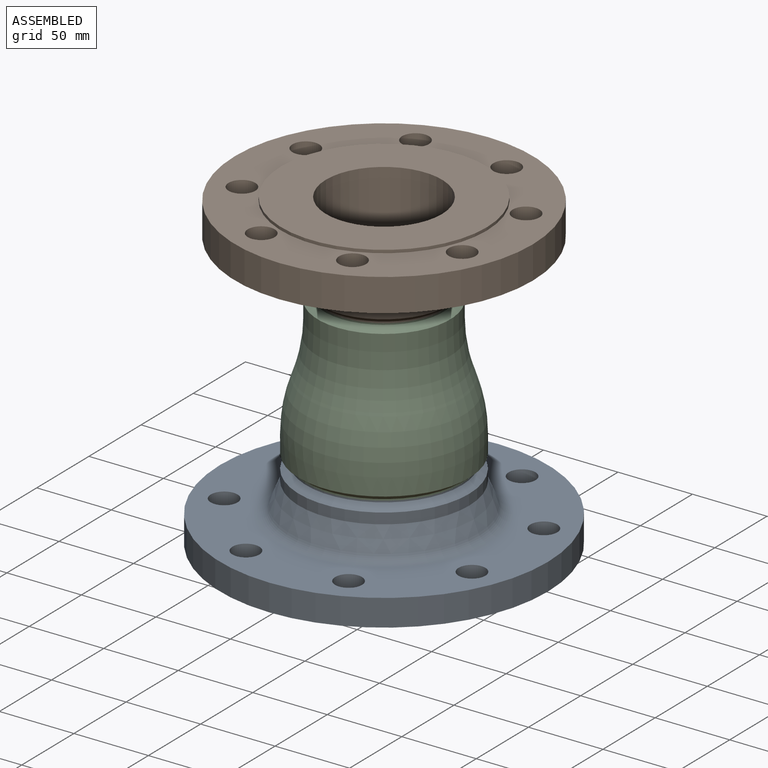
[diagram: assembled view]
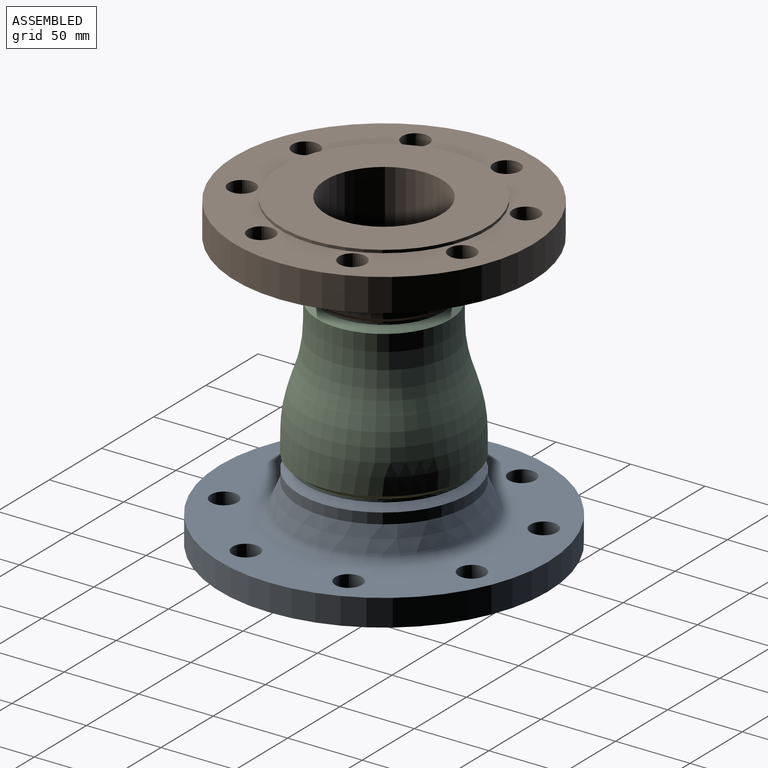
[diagram: assembled view, second angle]
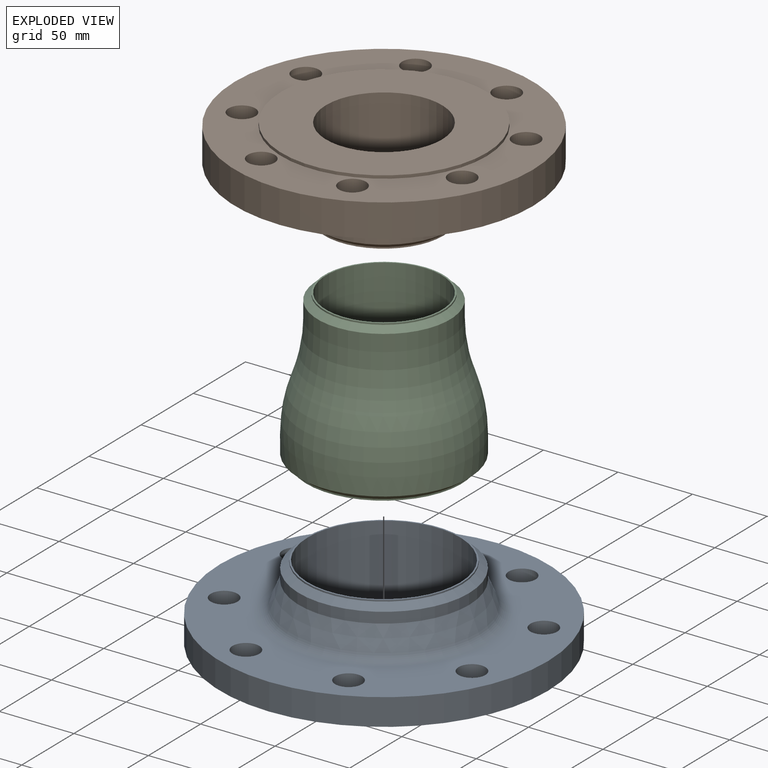
[diagram: exploded view]
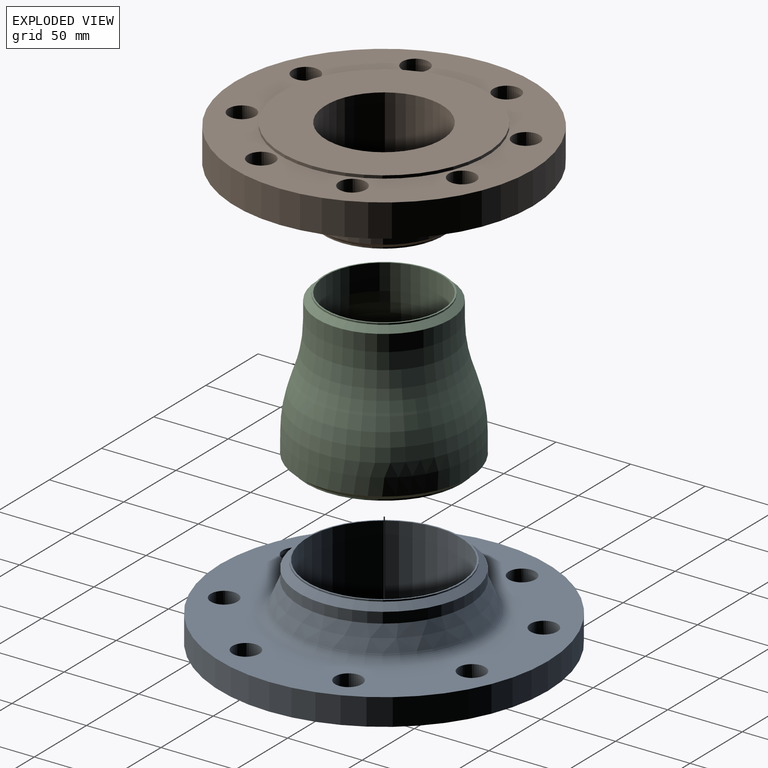
[diagram: exploded view, second angle]
ASSEMBLY  parts=3 mates=2
PART A: 20 faces, bbox 220x220x52 mm
  f0: plane 104.26x104.26mm, normal (0,0,1), area 324.4mm2, adj f1,f17
  f1: cylinder r=51.13mm len=102.26mm, axis (0,0,1), area 16705.5mm2, adj f0,f2
  f2: plane 158x158mm, normal (0,0,-1), area 11393.7mm2, adj f1,f3
  f3: cylinder r=79mm len=158mm, axis (0,0,1), area 992.7mm2, adj f2,f4
  f4: plane 220x220mm, normal (0,0,-1), area 16370.8mm2, adj f3,f5,f9,f10,f11,f12,f13,f14
  f5: cylinder r=110mm len=220mm, axis (0,0,1), area 12440.7mm2, adj f4,f6
  f6: plane 220x220mm, normal (0,0,1), area 20216.8mm2, adj f5,f9,f10,f11,f12,f13,f14,f15
  f7: cone r=65.5mm half-angle=22.7deg, axis (0,0,-1), area 6192.1mm2, adj f8,f19
  f8: cylinder r=57.15mm len=114.3mm, axis (0,0,1), area 2566.7mm2, adj f7,f18
  f9: cylinder r=9mm len=18mm, axis (0,0,1), area 1017.9mm2, adj f4,f6
  f10: cylinder r=9mm len=18mm, axis (0,0,1), area 1017.9mm2, adj f4,f6
  f11: cylinder r=9mm len=18mm, axis (0,0,1), area 1017.9mm2, adj f4,f6
  f12: cylinder r=9mm len=18mm, axis (0,0,1), area 1017.9mm2, adj f4,f6
  f13: cylinder r=9mm len=18mm, axis (0,0,1), area 1017.9mm2, adj f4,f6
  f14: cylinder r=9mm len=18mm, axis (0,0,1), area 1017.9mm2, adj f4,f6
  f15: cylinder r=9mm len=18mm, axis (0,0,1), area 1017.9mm2, adj f4,f6
  f16: cylinder r=9mm len=18mm, axis (0,0,1), area 1017.9mm2, adj f4,f6
  f17: cylinder r=52.13mm len=104.26mm, axis (0,0,-1), area 327.5mm2, adj f0,f18
  f18: cone r=52.13mm half-angle=52.5deg, axis (0,0,-1), area 2172.3mm2, adj f8,f17
  f19: torus R=70.83mm, axis (0,0,-1), area 3937.2mm2, adj f6,f7
PART B: 20 faces, bbox 200x200x58 mm
  f0: plane 79.92x79.92mm, normal (0,0,1), area 247.9mm2, adj f1,f17
  f1: cylinder r=38.96mm len=77.92mm, axis (0,0,1), area 14198mm2, adj f0,f2
  f2: plane 138x138mm, normal (0,0,-1), area 10188.6mm2, adj f1,f3
  f3: cylinder r=69mm len=138mm, axis (0,0,1), area 867.1mm2, adj f2,f4
  f4: plane 200x200mm, normal (0,0,-1), area 14423.1mm2, adj f3,f5,f9,f10,f11,f12,f13,f14
  f5: cylinder r=100mm len=200mm, axis (0,0,1), area 13823mm2, adj f4,f6
  f6: plane 200x200mm, normal (0,0,1), area 18778.5mm2, adj f5,f9,f10,f11,f12,f13,f14,f15
  f7: cone r=52.5mm half-angle=20.1deg, axis (0,0,-1), area 5324.5mm2, adj f8,f19
  f8: cylinder r=44.45mm len=88.9mm, axis (0,0,1), area 2109.9mm2, adj f7,f18
  f9: cylinder r=9mm len=22mm, axis (0,0,1), area 1244.1mm2, adj f4,f6
  f10: cylinder r=9mm len=22mm, axis (0,0,1), area 1244.1mm2, adj f4,f6
  f11: cylinder r=9mm len=22mm, axis (0,0,1), area 1244.1mm2, adj f4,f6
  f12: cylinder r=9mm len=22mm, axis (0,0,1), area 1244.1mm2, adj f4,f6
  f13: cylinder r=9mm len=22mm, axis (0,0,1), area 1244.1mm2, adj f4,f6
  f14: cylinder r=9mm len=22mm, axis (0,0,1), area 1244.1mm2, adj f4,f6
  f15: cylinder r=9mm len=22mm, axis (0,0,1), area 1244.1mm2, adj f4,f6
  f16: cylinder r=9mm len=22mm, axis (0,0,1), area 1244.1mm2, adj f4,f6
  f17: cylinder r=39.96mm len=79.92mm, axis (0,0,-1), area 251.1mm2, adj f0,f18
  f18: cone r=39.96mm half-angle=52.5deg, axis (0,0,-1), area 1500.8mm2, adj f8,f17
  f19: torus R=58.09mm, axis (0,0,-1), area 3298.5mm2, adj f6,f7
PART C: 16 faces, bbox 155.8x159x159 mm
  f0: plane 79.92x79.92mm, normal (-1,0,0), area 247.9mm2, adj f3,f5
  f1: cylinder r=51.13mm len=102.26mm, axis (-1,0,0), area 5166mm2, adj f2,f15
  f2: plane 104.26x104.26mm, normal (1,0,0), area 324.4mm2, adj f1,f10
  f3: cylinder r=38.96mm len=77.92mm, axis (-1,0,0), area 4214.6mm2, adj f0,f14
  f4: cone r=51.13mm half-angle=20deg, axis (1,0,0), area 89.8mm2, adj f14,f15
  f5: cylinder r=39.96mm len=79.92mm, axis (1,0,0), area 251.1mm2, adj f0,f6
  f6: cone r=39.96mm half-angle=52.5deg, axis (1,0,0), area 1500.8mm2, adj f5,f9
  f7: cylinder r=57.15mm len=114.3mm, axis (-1,0,0), area 4135mm2, adj f11,f12
  f8: cone r=57.15mm half-angle=20deg, axis (1,0,0), area 595.9mm2, adj f12,f13
  f9: cylinder r=44.45mm len=88.9mm, axis (-1,0,0), area 3080.3mm2, adj f6,f13
  f10: cylinder r=52.13mm len=104.26mm, axis (1,0,0), area 327.5mm2, adj f2,f11
  f11: cone r=52.13mm half-angle=52.5deg, axis (-1,0,0), area 2172.3mm2, adj f7,f10
  f12: revolved ~114.3x114.3mm, area 12091.7mm2, adj f7,f8
  f13: torus R=144.45mm, axis (-1,0,0), area 10191.7mm2, adj f8,f9
  f14: torus R=138.96mm, axis (1,0,0), area 8987.6mm2, adj f3,f4
  f15: revolved ~102.26x102.26mm, area 10771.4mm2, adj f1,f4
PLACE A t=(-118.91,-68.59,-0.68)mm fixed
PLACE B rot(axis=(1,0,0),180deg) t=(-118.91,-68.59,211.32)mm
PLACE C rot(axis=(0.58,0.58,-0.58),120deg) t=(-118.91,-68.59,153.32)mm
MATE fastened B.f1 <-> C.f1  axis (0,0,1) through (-118.91,-68.59,153.32)mm
MATE fastened C.f1 <-> A.f1  axis (0,0,1) through (-118.91,-68.59,51.32)mm
